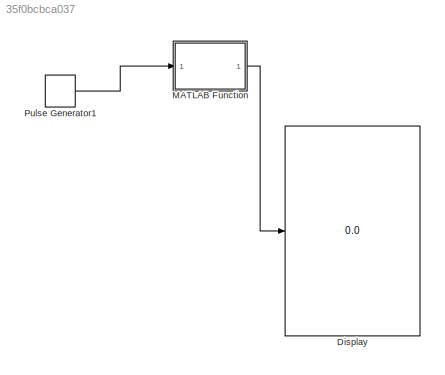
MODEL slx_35f0bcbca037
KIND model
CONFIG AbsTol = auto
CONFIG EnableMultiTasking = off
CONFIG FixedStep = auto
CONFIG MaxStep = auto
CONFIG MinStep = auto
CONFIG RelTol = 1e-3
CONFIG SampleTimeConstraint = Unconstrained
CONFIG SolverName = VariableStepAuto
CONFIG StartTime = 0.0
CONFIG StopTime = 10.0
BLOCK [Display] Display
  Decimation = 1
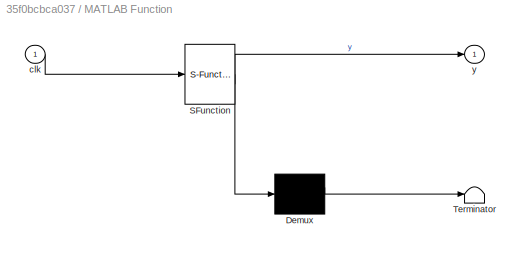
BLOCK [SubSystem] MATLAB Function
  ErrorFcn = Stateflow.Translate.translate
  PermitHierarchicalResolution = ExplicitOnly
  SFBlockType = MATLAB Function
  TreatAsAtomicUnit = on
BLOCK [Demux] MATLAB Function/ Demux 
  Outputs = 1
BLOCK [S-Function] MATLAB Function/ SFunction 
  EnableBusSupport = on
  FunctionName = sf_sfun
  PortCounts = [1 2]
  SFcnIsStateOwnerBlock = off
  SFunctionDeploymentMode = off
  Tag = Stateflow S-Function 2
BLOCK [Terminator] MATLAB Function/ Terminator 
BLOCK [Inport] MATLAB Function/clk
BLOCK [Outport] MATLAB Function/y
BLOCK [DiscretePulseGenerator] Pulse Generator1
  Period = 10
  PulseWidth = 5
  SampleTime = 0.1
LINE MATLAB Function:1 -> Display:1
LINE Pulse Generator1:1 -> MATLAB Function:1
CHART MATLAB Function states=1 transitions=1
  STATE_LABEL 'eML_blk_kernel()'
  STATE_LABEL 'SCRIPT:\nfunction y = ring_counter(clk)\n% 7-bit Ring Counter\npersistent state\nif isempty(state)\n    state = [1 0 0 0 0 0 0]; % Initial state\nend\n\nif clk == 1\n    state = circshift(state, [0 1]); % Shift right\nend\n\ny = state;\n'
CHART  states=0 transitions=0
